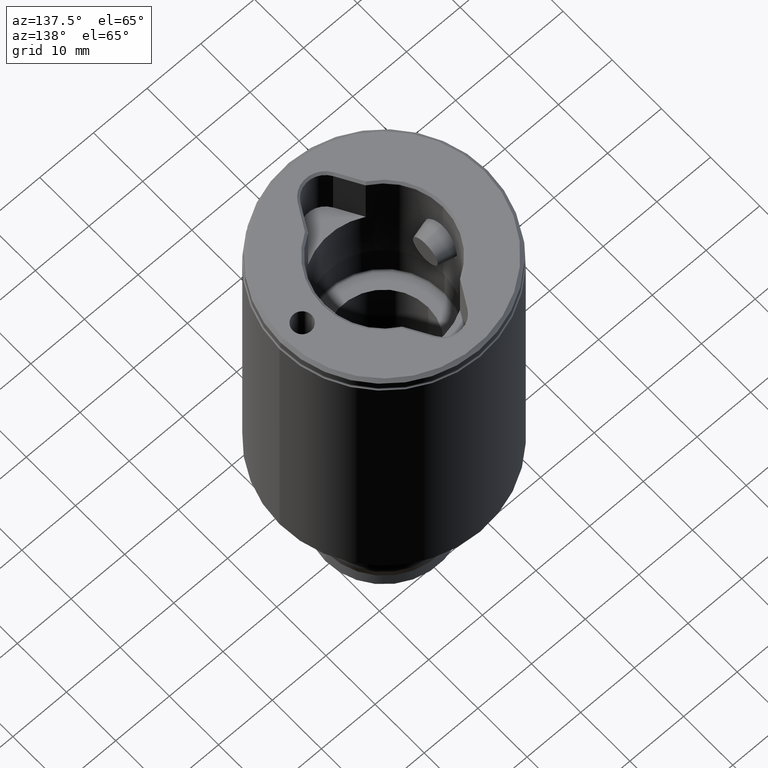
[diagram: clean part render]
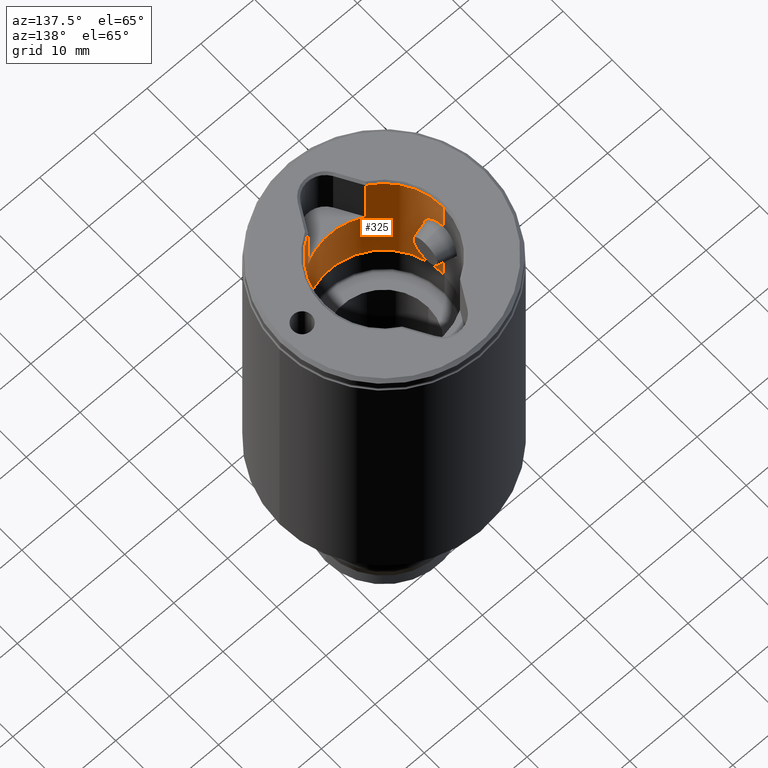
[diagram: same view with one face highlighted and labeled with its STEP entity id]
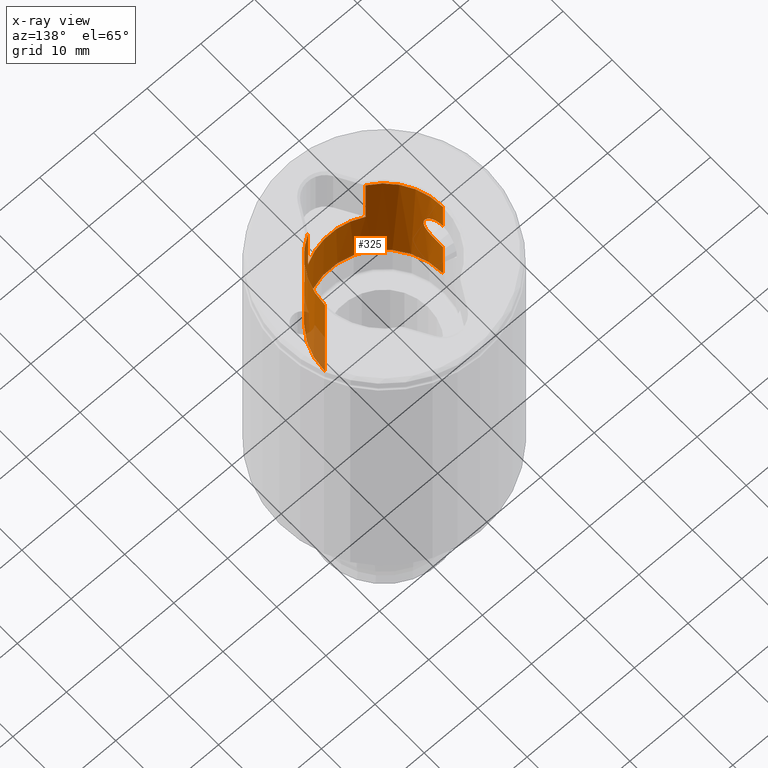
[diagram: x-ray of the same camera — body ghosted, the highlighted face saturated]
A machine part, auxiliary view. The second image highlights one B-rep face of the part: STEP entity #325.
The next image is the same camera in x-ray: the body ghosted, the highlighted face saturated — about 8% of this face is hidden behind the body in this view.
In plain terms, the highlighted cylindrical surface (partial cylindrical patch) has radius 11 mm, axis along (0, 0, 1).
Its self-contained STEP definition (entity closure, byte-faithful):
#30 = CYLINDRICAL_SURFACE ( 'NONE', #4532, 11.00000000000000000 ) ;
#51 = CARTESIAN_POINT ( 'NONE',  ( 11.00000000000000000, 1.347111479062088200E-015, 0.4000000000000010200 ) ) ;
#111 = EDGE_CURVE ( 'NONE', #971, #1064, #4616, .T. ) ;
#121 = CARTESIAN_POINT ( 'NONE',  ( 10.89778273903360200, -1.510281813923715100, 13.10423185687760900 ) ) ;
#136 = DIRECTION ( 'NONE',  ( -0.0000000000000000000, -0.0000000000000000000, -1.000000000000000000 ) ) ;
#137 = CARTESIAN_POINT ( 'NONE',  ( 10.46855811663001700, -3.378075537059203700, 9.604393073164811100 ) ) ;
#158 = DIRECTION ( 'NONE',  ( 1.000000000000000000, 0.0000000000000000000, 0.0000000000000000000 ) ) ;
#159 = CARTESIAN_POINT ( 'NONE',  ( 11.00000000000000000, -2.854094968557275700E-016, 6.650000000000004800 ) ) ;
#325 = ADVANCED_FACE ( 'NONE', ( #1972 ), #30, .F. ) ;
#435 = CARTESIAN_POINT ( 'NONE',  ( 11.00000000000000000, 1.347111479062088200E-015, 29.00000000000000000 ) ) ;
#440 = CIRCLE ( 'NONE', #3913, 11.00000000000000000 ) ;
#493 = CARTESIAN_POINT ( 'NONE',  ( 10.80376976323401400, -2.076867039080855500, 12.75103494069033700 ) ) ;
#512 = CARTESIAN_POINT ( 'NONE',  ( 10.51714448459539300, -3.224525252606021700, 8.949271347047872600 ) ) ;
#715 = VECTOR ( 'NONE', #1613, 1000.000000000000000 ) ;
#855 = CARTESIAN_POINT ( 'NONE',  ( 10.69894297696390100, -2.560950874823587000, 12.29738899067092500 ) ) ;
#865 = ORIENTED_EDGE ( 'NONE', *, *, #4562, .T. ) ;
#872 = CARTESIAN_POINT ( 'NONE',  ( 10.66406871012732800, -2.716535970824290200, 7.958426300811553700 ) ) ;
#878 = CARTESIAN_POINT ( 'NONE',  ( 0.0000000000000000000, 0.0000000000000000000, 22.00000000000000400 ) ) ;
#941 = EDGE_CURVE ( 'NONE', #1803, #4666, #2245, .T. ) ;
#971 = VERTEX_POINT ( 'NONE', #3529 ) ;
#995 = ORIENTED_EDGE ( 'NONE', *, *, #2361, .T. ) ;
#1061 = B_SPLINE_CURVE_WITH_KNOTS ( 'NONE', 3,
 ( #1203, #2277, #1924, #4501, #2294, #121, #2664, #493, #3026, #855, #3408, #1220, #3791, #1592, #4147, #1945, #4521, #2321, #137, #2685, #512, #3044, #872, #3426, #1241, #3810, #1605, #4166, #1963, #4541, #2339, #159 ),
 .UNSPECIFIED., .F., .F.,
 ( 4, 2, 2, 2, 2, 2, 2, 2, 2, 2, 2, 2, 2, 2, 2, 4 ),
 ( 0.01069584777791376800, 0.01136415994486482200, 0.01203247211181587500, 0.01270078427876692900, 0.01336909644571798200, 0.01403740861266903700, 0.01470572077962008900, 0.01537403294657114400, 0.01604234511352219800, 0.01671065728047325300, 0.01737896944742430400, 0.01871559378132641200, 0.01938390594827746700, 0.02005221811522852500, 0.02072053028217957900, 0.02138884244913063400 ),
 .UNSPECIFIED. ) ;
#1064 = VERTEX_POINT ( 'NONE', #51 ) ;
#1077 = ORIENTED_EDGE ( 'NONE', *, *, #4543, .T. ) ;
#1203 = CARTESIAN_POINT ( 'NONE',  ( 11.00000000000000000, 1.347064945306348700E-015, 13.44999999999999600 ) ) ;
#1220 = CARTESIAN_POINT ( 'NONE',  ( 10.59839277848787700, -2.947908426326384400, 11.75833439388508800 ) ) ;
#1241 = CARTESIAN_POINT ( 'NONE',  ( 10.80398567923262300, -2.075773760349985100, 7.348097860351972000 ) ) ;
#1248 = DIRECTION ( 'NONE',  ( -1.000000000000000000, 0.0000000000000000000, 0.0000000000000000000 ) ) ;
#1383 = CIRCLE ( 'NONE', #2127, 11.00000000000000000 ) ;
#1485 = CIRCLE ( 'NONE', #1886, 11.00000000000000000 ) ;
#1564 = VERTEX_POINT ( 'NONE', #2844 ) ;
#1592 = CARTESIAN_POINT ( 'NONE',  ( 10.51689247214758500, -3.225375077360942600, 11.14873790088664600 ) ) ;
#1605 = CARTESIAN_POINT ( 'NONE',  ( 10.89741348953733900, -1.512966165364253400, 6.997079217529824600 ) ) ;
#1613 = DIRECTION ( 'NONE',  ( 0.0000000000000000000, 0.0000000000000000000, -1.000000000000000000 ) ) ;
#1649 = DIRECTION ( 'NONE',  ( -1.000000000000000000, 0.0000000000000000000, 0.0000000000000000000 ) ) ;
#1672 = DIRECTION ( 'NONE',  ( 0.0000000000000000000, 0.0000000000000000000, -1.000000000000000000 ) ) ;
#1686 = VERTEX_POINT ( 'NONE', #4360 ) ;
#1788 = LINE ( 'NONE', #4183, #715 ) ;
#1803 = VERTEX_POINT ( 'NONE', #3478 ) ;
#1813 = ORIENTED_EDGE ( 'NONE', *, *, #3491, .T. ) ;
#1886 = AXIS2_PLACEMENT_3D ( 'NONE', #878, #3436, #1248 ) ;
#1924 = CARTESIAN_POINT ( 'NONE',  ( 10.99315991351753900, -0.4464255481368802300, 13.42806661715604700 ) ) ;
#1945 = CARTESIAN_POINT ( 'NONE',  ( 10.46878730487393500, -3.377364983521367500, 10.50034792152961500 ) ) ;
#1963 = CARTESIAN_POINT ( 'NONE',  ( 10.96647979519783400, -0.8855957878495422900, 6.759800110597109500 ) ) ;
#1970 = DIRECTION ( 'NONE',  ( -0.0000000000000000000, -0.0000000000000000000, 1.000000000000000000 ) ) ;
#1972 = FACE_OUTER_BOUND ( 'NONE', #3263, .T. ) ;
#2015 = CARTESIAN_POINT ( 'NONE',  ( 5.377444024197265200, -9.595993735232694300, 29.00000000000000000 ) ) ;
#2028 = EDGE_CURVE ( 'NONE', #1686, #2892, #1788, .T. ) ;
#2081 = CARTESIAN_POINT ( 'NONE',  ( 5.377444024197264300, -9.595993735232694300, 10.60000000000000100 ) ) ;
#2127 = AXIS2_PLACEMENT_3D ( 'NONE', #4177, #1970, #4549 ) ;
#2245 = LINE ( 'NONE', #435, #2476 ) ;
#2277 = CARTESIAN_POINT ( 'NONE',  ( 10.99999999999999800, -0.2227504275168112300, 13.44999999999999400 ) ) ;
#2294 = CARTESIAN_POINT ( 'NONE',  ( 10.94677771608803400, -1.100307874735917400, 13.27468695749352900 ) ) ;
#2320 = CARTESIAN_POINT ( 'NONE',  ( 0.0000000000000000000, 0.0000000000000000000, 0.4000000000000010200 ) ) ;
#2321 = CARTESIAN_POINT ( 'NONE',  ( 10.46135551072692500, -3.400006011498117900, 9.826015744898432700 ) ) ;
#2338 = DIRECTION ( 'NONE',  ( -0.0000000000000000000, -0.0000000000000000000, -1.000000000000000000 ) ) ;
#2339 = CARTESIAN_POINT ( 'NONE',  ( 10.99999999999999800, -0.2260785781887688600, 6.650000000000005700 ) ) ;
#2361 = EDGE_CURVE ( 'NONE', #4666, #971, #1061, .T. ) ;
#2410 = CARTESIAN_POINT ( 'NONE',  ( -11.00000000000000000, 0.0000000000000000000, 29.00000000000000000 ) ) ;
#2476 = VECTOR ( 'NONE', #2611, 1000.000000000000000 ) ;
#2513 = VERTEX_POINT ( 'NONE', #4238 ) ;
#2560 = VERTEX_POINT ( 'NONE', #2081 ) ;
#2611 = DIRECTION ( 'NONE',  ( 0.0000000000000000000, 0.0000000000000000000, -1.000000000000000000 ) ) ;
#2654 = CARTESIAN_POINT ( 'NONE',  ( 0.0000000000000000000, 0.0000000000000000000, 29.00000000000000000 ) ) ;
#2664 = CARTESIAN_POINT ( 'NONE',  ( 10.86799435360497400, -1.709244431028038400, 12.99744803581847200 ) ) ;
#2683 = DIRECTION ( 'NONE',  ( 1.000000000000000000, 1.776356839400250500E-015, 0.0000000000000000000 ) ) ;
#2685 = CARTESIAN_POINT ( 'NONE',  ( 10.49636226439613100, -3.290665979691483200, 9.165987965340731200 ) ) ;
#2801 = VECTOR ( 'NONE', #4598, 1000.000000000000000 ) ;
#2812 = ORIENTED_EDGE ( 'NONE', *, *, #941, .T. ) ;
#2844 = CARTESIAN_POINT ( 'NONE',  ( -11.00000000000000000, 0.0000000000000000000, 22.00000000000000400 ) ) ;
#2892 = VERTEX_POINT ( 'NONE', #4009 ) ;
#3018 = ORIENTED_EDGE ( 'NONE', *, *, #3536, .F. ) ;
#3026 = CARTESIAN_POINT ( 'NONE',  ( 10.76922013713405200, -2.247164401091112900, 12.61114794830704800 ) ) ;
#3032 = DIRECTION ( 'NONE',  ( 0.0000000000000000000, 0.0000000000000000000, -1.000000000000000000 ) ) ;
#3044 = CARTESIAN_POINT ( 'NONE',  ( 10.59320257282971600, -2.969111670043910400, 8.335053184701019200 ) ) ;
#3102 = CARTESIAN_POINT ( 'NONE',  ( 5.377444024197265200, -9.595993735232694300, 0.4000000000000080200 ) ) ;
#3135 = EDGE_CURVE ( 'NONE', #1564, #1803, #1485, .T. ) ;
#3139 = EDGE_CURVE ( 'NONE', #1686, #2560, #1383, .T. ) ;
#3156 = AXIS2_PLACEMENT_3D ( 'NONE', #2320, #136, #2683 ) ;
#3263 = EDGE_LOOP ( 'NONE', ( #4663, #2812, #995, #3921, #865, #1813, #4716, #3908, #1077, #3018 ) ) ;
#3342 = CIRCLE ( 'NONE', #3156, 11.00000000000000000 ) ;
#3408 = CARTESIAN_POINT ( 'NONE',  ( 10.66355993341934100, -2.702699229193626700, 12.12460535231475200 ) ) ;
#3426 = CARTESIAN_POINT ( 'NONE',  ( 10.76877245613043100, -2.249226994294100600, 7.490793094898641000 ) ) ;
#3436 = DIRECTION ( 'NONE',  ( -0.0000000000000000000, -0.0000000000000000000, 1.000000000000000000 ) ) ;
#3442 = VERTEX_POINT ( 'NONE', #3102 ) ;
#3478 = CARTESIAN_POINT ( 'NONE',  ( 11.00000000000000000, 1.347111479062088200E-015, 22.00000000000000400 ) ) ;
#3491 = EDGE_CURVE ( 'NONE', #3442, #2560, #4740, .T. ) ;
#3517 = CARTESIAN_POINT ( 'NONE',  ( 11.00000000000000000, 1.347064945306348700E-015, 13.44999999999999600 ) ) ;
#3529 = CARTESIAN_POINT ( 'NONE',  ( 11.00000000000000000, -2.854094968557275700E-016, 6.650000000000004800 ) ) ;
#3536 = EDGE_CURVE ( 'NONE', #1564, #2513, #3795, .T. ) ;
#3659 = VECTOR ( 'NONE', #1672, 1000.000000000000000 ) ;
#3791 = CARTESIAN_POINT ( 'NONE',  ( 10.56817238576164200, -3.053162964075255600, 11.56276742406263300 ) ) ;
#3795 = LINE ( 'NONE', #2410, #3659 ) ;
#3810 = CARTESIAN_POINT ( 'NONE',  ( 10.86827733466429500, -1.707480904151914100, 7.101505326722011600 ) ) ;
#3836 = DIRECTION ( 'NONE',  ( 0.0000000000000000000, 0.0000000000000000000, -1.000000000000000000 ) ) ;
#3908 = ORIENTED_EDGE ( 'NONE', *, *, #2028, .T. ) ;
#3913 = AXIS2_PLACEMENT_3D ( 'NONE', #4540, #2338, #158 ) ;
#3921 = ORIENTED_EDGE ( 'NONE', *, *, #111, .T. ) ;
#4009 = CARTESIAN_POINT ( 'NONE',  ( -5.377444024197280300, -9.595993735232683600, 0.4000000000000045200 ) ) ;
#4147 = CARTESIAN_POINT ( 'NONE',  ( 10.49657567908068900, -3.289984936126275600, 10.93623168663985700 ) ) ;
#4166 = CARTESIAN_POINT ( 'NONE',  ( 10.94654225199889400, -1.102678604440348900, 6.826106109549386700 ) ) ;
#4177 = CARTESIAN_POINT ( 'NONE',  ( 0.0000000000000000000, 0.0000000000000000000, 10.60000000000000100 ) ) ;
#4183 = CARTESIAN_POINT ( 'NONE',  ( -5.377444024197280300, -9.595993735232683600, 29.00000000000000000 ) ) ;
#4192 = CARTESIAN_POINT ( 'NONE',  ( 11.00000000000000000, 1.347111479062088200E-015, 29.00000000000000000 ) ) ;
#4238 = CARTESIAN_POINT ( 'NONE',  ( -11.00000000000000000, 0.0000000000000000000, 0.4000000000000010200 ) ) ;
#4360 = CARTESIAN_POINT ( 'NONE',  ( -5.377444024197278500, -9.595993735232687200, 10.60000000000000100 ) ) ;
#4488 = VECTOR ( 'NONE', #3836, 1000.000000000000000 ) ;
#4501 = CARTESIAN_POINT ( 'NONE',  ( 10.96635070899095300, -0.8877008401549981700, 13.33977462121062300 ) ) ;
#4521 = CARTESIAN_POINT ( 'NONE',  ( 10.46135941906396200, -3.399993986053754900, 10.27416672267547100 ) ) ;
#4532 = AXIS2_PLACEMENT_3D ( 'NONE', #2654, #3032, #1649 ) ;
#4540 = CARTESIAN_POINT ( 'NONE',  ( 0.0000000000000000000, 0.0000000000000000000, 0.4000000000000010200 ) ) ;
#4541 = CARTESIAN_POINT ( 'NONE',  ( 10.99303810078280100, -0.4484108748423337700, 6.672334697012331600 ) ) ;
#4543 = EDGE_CURVE ( 'NONE', #2892, #2513, #3342, .T. ) ;
#4549 = DIRECTION ( 'NONE',  ( -1.000000000000000000, 0.0000000000000000000, 0.0000000000000000000 ) ) ;
#4562 = EDGE_CURVE ( 'NONE', #1064, #3442, #440, .T. ) ;
#4598 = DIRECTION ( 'NONE',  ( -0.0000000000000000000, -0.0000000000000000000, 1.000000000000000000 ) ) ;
#4616 = LINE ( 'NONE', #4192, #4488 ) ;
#4663 = ORIENTED_EDGE ( 'NONE', *, *, #3135, .T. ) ;
#4666 = VERTEX_POINT ( 'NONE', #3517 ) ;
#4716 = ORIENTED_EDGE ( 'NONE', *, *, #3139, .F. ) ;
#4740 = LINE ( 'NONE', #2015, #2801 ) ;